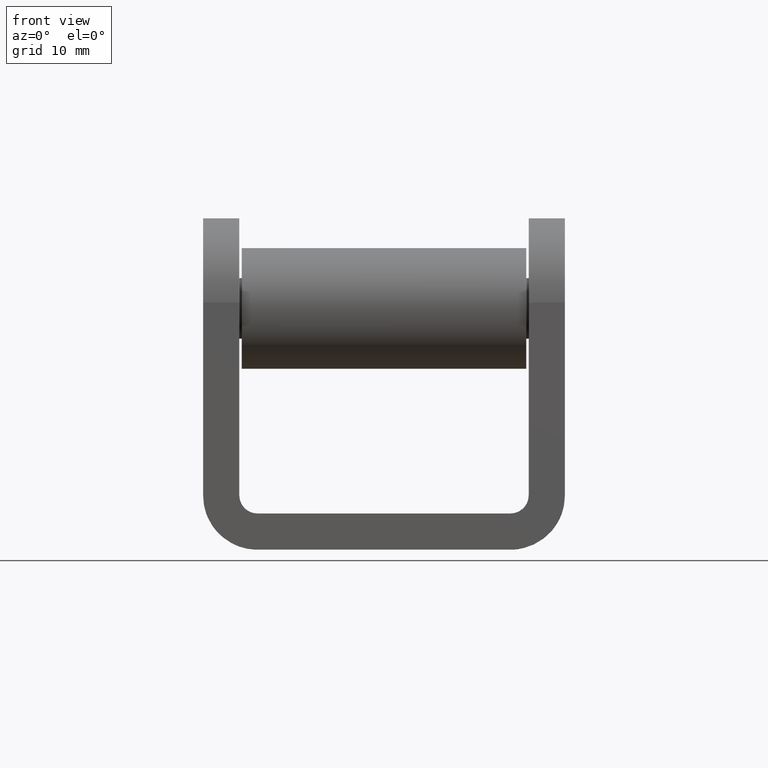
[diagram: clean part render]
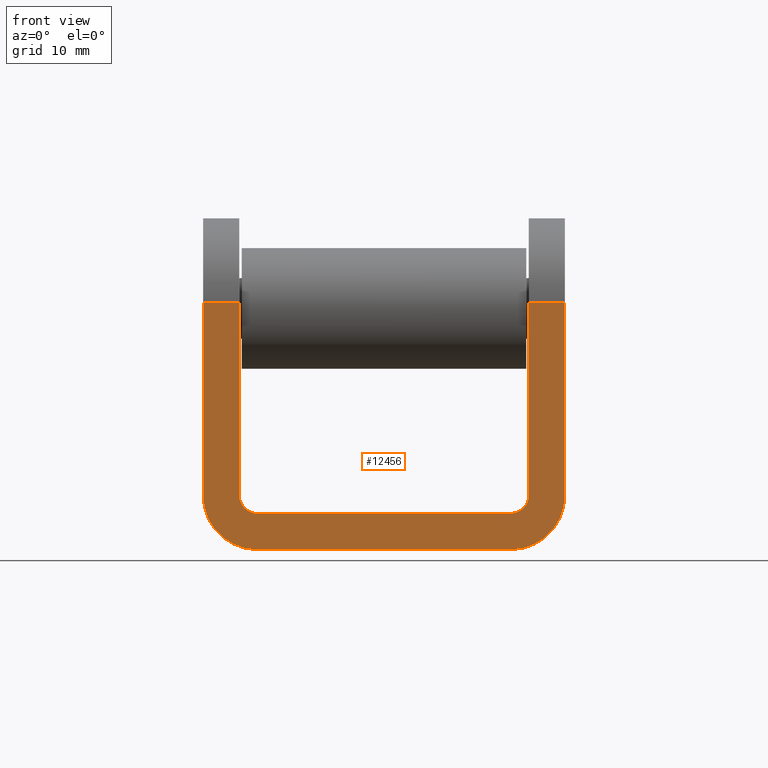
[diagram: same view with one face highlighted and labeled with its STEP entity id]
A machine part, front view. The second image highlights one B-rep face of the part: STEP entity #12456.
In plain terms, the highlighted planar face has unit normal (-0, 1, 0).
Its self-contained STEP definition (entity closure, byte-faithful):
#182 = DIRECTION ( 'NONE',  ( 0.000000000000000000, 0.000000000000000000, 1.000000000000000000 ) ) ;
#224 = LINE ( 'NONE', #4404, #11441 ) ;
#230 = CARTESIAN_POINT ( 'NONE',  ( -10.50000000000000000, -22.50000000000000711, -10.75000000000000178 ) ) ;
#615 = EDGE_CURVE ( 'NONE', #9306, #14667, #13634, .T. ) ;
#688 = DIRECTION ( 'NONE',  ( 1.309225264888156377E-16, 0.000000000000000000, 1.000000000000000000 ) ) ;
#996 = CARTESIAN_POINT ( 'NONE',  ( 15.00000000000000000, -22.50000000000000711, 6.750000000000006217 ) ) ;
#1111 = DIRECTION ( 'NONE',  ( -0.000000000000000000, 1.000000000000000000, 1.692413147294445230E-16 ) ) ;
#1132 = VERTEX_POINT ( 'NONE', #2588 ) ;
#1136 = LINE ( 'NONE', #15192, #2490 ) ;
#1221 = ORIENTED_EDGE ( 'NONE', *, *, #5946, .T. ) ;
#1392 = CARTESIAN_POINT ( 'NONE',  ( 15.00000000000000000, -22.50000000000000355, -13.75000000000000178 ) ) ;
#1537 = CARTESIAN_POINT ( 'NONE',  ( -10.49999999999999822, -22.50000000000000355, -13.75000000000000178 ) ) ;
#1975 = CARTESIAN_POINT ( 'NONE',  ( 15.00000000000000000, -22.50000000000000355, -9.250000000000001776 ) ) ;
#2012 = CIRCLE ( 'NONE', #3118, 1.499999999999999556 ) ;
#2054 = DIRECTION ( 'NONE',  ( -0.000000000000000000, 1.000000000000000000, 1.692413147294445230E-16 ) ) ;
#2245 = EDGE_CURVE ( 'NONE', #14977, #6418, #9064, .T. ) ;
#2344 = ORIENTED_EDGE ( 'NONE', *, *, #10810, .T. ) ;
#2450 = CARTESIAN_POINT ( 'NONE',  ( -11.99999999999999822, -22.50000000000000711, 6.750000000000006217 ) ) ;
#2490 = VECTOR ( 'NONE', #688, 1000.000000000000000 ) ;
#2502 = CARTESIAN_POINT ( 'NONE',  ( 10.49999999999999822, -22.50000000000000355, -9.250000000000001776 ) ) ;
#2588 = CARTESIAN_POINT ( 'NONE',  ( 15.00000000000000000, -22.50000000000000711, 6.750000000000006217 ) ) ;
#2722 = AXIS2_PLACEMENT_3D ( 'NONE', #12317, #9999, #9951 ) ;
#2947 = VERTEX_POINT ( 'NONE', #8171 ) ;
#2966 = EDGE_CURVE ( 'NONE', #2947, #4096, #2012, .T. ) ;
#3118 = AXIS2_PLACEMENT_3D ( 'NONE', #13020, #2054, #5613 ) ;
#3178 = EDGE_CURVE ( 'NONE', #14977, #11846, #4104, .T. ) ;
#3242 = LINE ( 'NONE', #10045, #8605 ) ;
#3292 = VECTOR ( 'NONE', #15286, 1000.000000000000000 ) ;
#4096 = VERTEX_POINT ( 'NONE', #11764 ) ;
#4104 = CIRCLE ( 'NONE', #8630, 4.500000000000000000 ) ;
#4404 = CARTESIAN_POINT ( 'NONE',  ( -12.00000000000000000, -22.50000000000000711, -10.75000000000000178 ) ) ;
#4412 = ORIENTED_EDGE ( 'NONE', *, *, #10090, .T. ) ;
#4424 = CIRCLE ( 'NONE', #14597, 4.500000000000000000 ) ;
#4455 = ORIENTED_EDGE ( 'NONE', *, *, #6191, .F. ) ;
#4927 = ORIENTED_EDGE ( 'NONE', *, *, #2245, .F. ) ;
#5194 = AXIS2_PLACEMENT_3D ( 'NONE', #996, #1111, #15558 ) ;
#5211 = VECTOR ( 'NONE', #7658, 1000.000000000000000 ) ;
#5613 = DIRECTION ( 'NONE',  ( 0.000000000000000000, 0.000000000000000000, 1.000000000000000000 ) ) ;
#5621 = DIRECTION ( 'NONE',  ( -1.000000000000000000, -0.000000000000000000, -0.000000000000000000 ) ) ;
#5832 = VECTOR ( 'NONE', #11513, 1000.000000000000000 ) ;
#5946 = EDGE_CURVE ( 'NONE', #1132, #7105, #11648, .T. ) ;
#5978 = ORIENTED_EDGE ( 'NONE', *, *, #11607, .T. ) ;
#6135 = DIRECTION ( 'NONE',  ( 0.000000000000000000, 1.692413147294445230E-16, -1.000000000000000000 ) ) ;
#6191 = EDGE_CURVE ( 'NONE', #1132, #11846, #10340, .T. ) ;
#6240 = CARTESIAN_POINT ( 'NONE',  ( 12.00000000000000178, -22.50000000000000711, 6.750000000000006217 ) ) ;
#6257 = DIRECTION ( 'NONE',  ( 0.000000000000000000, -1.000000000000000000, -1.692413147294445230E-16 ) ) ;
#6418 = VERTEX_POINT ( 'NONE', #1537 ) ;
#6443 = CARTESIAN_POINT ( 'NONE',  ( 15.00000000000000000, -22.50000000000000711, 6.750000000000006217 ) ) ;
#6661 = CARTESIAN_POINT ( 'NONE',  ( -10.49999999999999822, -22.50000000000001066, -9.250000000000003553 ) ) ;
#6769 = EDGE_CURVE ( 'NONE', #7175, #6418, #4424, .T. ) ;
#7105 = VERTEX_POINT ( 'NONE', #6240 ) ;
#7175 = VERTEX_POINT ( 'NONE', #14198 ) ;
#7639 = EDGE_CURVE ( 'NONE', #4096, #9306, #224, .T. ) ;
#7658 = DIRECTION ( 'NONE',  ( -1.000000000000000000, -0.000000000000000000, -0.000000000000000000 ) ) ;
#7727 = VERTEX_POINT ( 'NONE', #2450 ) ;
#7978 = CARTESIAN_POINT ( 'NONE',  ( 10.49999999999999822, -22.50000000000000355, -13.75000000000000178 ) ) ;
#7986 = VECTOR ( 'NONE', #13018, 1000.000000000000000 ) ;
#8171 = CARTESIAN_POINT ( 'NONE',  ( 12.00000000000000000, -22.50000000000000355, -9.250000000000015987 ) ) ;
#8605 = VECTOR ( 'NONE', #13824, 1000.000000000000000 ) ;
#8623 = ORIENTED_EDGE ( 'NONE', *, *, #615, .T. ) ;
#8630 = AXIS2_PLACEMENT_3D ( 'NONE', #2502, #6257, #182 ) ;
#9064 = LINE ( 'NONE', #1392, #5832 ) ;
#9306 = VERTEX_POINT ( 'NONE', #230 ) ;
#9702 = ORIENTED_EDGE ( 'NONE', *, *, #6769, .T. ) ;
#9951 = DIRECTION ( 'NONE',  ( 0.000000000000000000, 0.000000000000000000, 1.000000000000000000 ) ) ;
#9999 = DIRECTION ( 'NONE',  ( -0.000000000000000000, 1.000000000000000000, 1.692413147294445230E-16 ) ) ;
#10045 = CARTESIAN_POINT ( 'NONE',  ( 12.00000000000000178, -22.50000000000000711, 6.750000000000006217 ) ) ;
#10088 = LINE ( 'NONE', #12010, #10463 ) ;
#10090 = EDGE_CURVE ( 'NONE', #7105, #2947, #3242, .T. ) ;
#10340 = LINE ( 'NONE', #14203, #3292 ) ;
#10463 = VECTOR ( 'NONE', #6135, 1000.000000000000000 ) ;
#10680 = PLANE ( 'NONE',  #5194 ) ;
#10697 = CARTESIAN_POINT ( 'NONE',  ( -12.00000000000000000, -22.50000000000000711, -9.250000000000017764 ) ) ;
#10810 = EDGE_CURVE ( 'NONE', #15075, #7175, #10088, .T. ) ;
#11036 = LINE ( 'NONE', #15421, #7986 ) ;
#11441 = VECTOR ( 'NONE', #5621, 1000.000000000000000 ) ;
#11513 = DIRECTION ( 'NONE',  ( -1.000000000000000000, -0.000000000000000000, -0.000000000000000000 ) ) ;
#11540 = DIRECTION ( 'NONE',  ( 0.000000000000000000, -1.000000000000000000, -1.692413147294445230E-16 ) ) ;
#11607 = EDGE_CURVE ( 'NONE', #7727, #15075, #11036, .T. ) ;
#11648 = LINE ( 'NONE', #6443, #5211 ) ;
#11764 = CARTESIAN_POINT ( 'NONE',  ( 10.49999999999999822, -22.50000000000000711, -10.75000000000000178 ) ) ;
#11846 = VERTEX_POINT ( 'NONE', #1975 ) ;
#11954 = EDGE_CURVE ( 'NONE', #14667, #7727, #1136, .T. ) ;
#12010 = CARTESIAN_POINT ( 'NONE',  ( -15.00000000000000000, -22.50000000000000711, 6.750000000000006217 ) ) ;
#12152 = ORIENTED_EDGE ( 'NONE', *, *, #7639, .T. ) ;
#12317 = CARTESIAN_POINT ( 'NONE',  ( -10.50000000000000000, -22.50000000000000355, -9.250000000000017764 ) ) ;
#12325 = EDGE_LOOP ( 'NONE', ( #2344, #9702, #4927, #15001, #4455, #1221, #4412, #15396, #12152, #8623, #15168, #5978 ) ) ;
#12456 = ADVANCED_FACE ( 'NONE', ( #14209 ), #10680, .F. ) ;
#12744 = DIRECTION ( 'NONE',  ( 0.000000000000000000, 0.000000000000000000, 1.000000000000000000 ) ) ;
#13018 = DIRECTION ( 'NONE',  ( -1.000000000000000000, -0.000000000000000000, -0.000000000000000000 ) ) ;
#13020 = CARTESIAN_POINT ( 'NONE',  ( 10.50000000000000000, -22.50000000000001066, -9.250000000000017764 ) ) ;
#13634 = CIRCLE ( 'NONE', #2722, 1.499999999999999556 ) ;
#13824 = DIRECTION ( 'NONE',  ( -1.309225264888156377E-16, 1.692413147294445230E-16, -1.000000000000000000 ) ) ;
#14198 = CARTESIAN_POINT ( 'NONE',  ( -15.00000000000000000, -22.50000000000000355, -9.250000000000001776 ) ) ;
#14203 = CARTESIAN_POINT ( 'NONE',  ( 15.00000000000000000, -22.50000000000000711, 6.750000000000006217 ) ) ;
#14209 = FACE_OUTER_BOUND ( 'NONE', #12325, .T. ) ;
#14597 = AXIS2_PLACEMENT_3D ( 'NONE', #6661, #11540, #12744 ) ;
#14667 = VERTEX_POINT ( 'NONE', #10697 ) ;
#14977 = VERTEX_POINT ( 'NONE', #7978 ) ;
#15001 = ORIENTED_EDGE ( 'NONE', *, *, #3178, .T. ) ;
#15075 = VERTEX_POINT ( 'NONE', #15164 ) ;
#15164 = CARTESIAN_POINT ( 'NONE',  ( -15.00000000000000000, -22.50000000000000711, 6.750000000000006217 ) ) ;
#15168 = ORIENTED_EDGE ( 'NONE', *, *, #11954, .T. ) ;
#15192 = CARTESIAN_POINT ( 'NONE',  ( -12.00000000000000000, -22.50000000000000711, -10.75000000000000178 ) ) ;
#15286 = DIRECTION ( 'NONE',  ( 0.000000000000000000, 1.692413147294445230E-16, -1.000000000000000000 ) ) ;
#15396 = ORIENTED_EDGE ( 'NONE', *, *, #2966, .T. ) ;
#15421 = CARTESIAN_POINT ( 'NONE',  ( 15.00000000000000000, -22.50000000000000711, 6.750000000000006217 ) ) ;
#15558 = DIRECTION ( 'NONE',  ( 0.000000000000000000, -1.692413147294445230E-16, 1.000000000000000000 ) ) ;